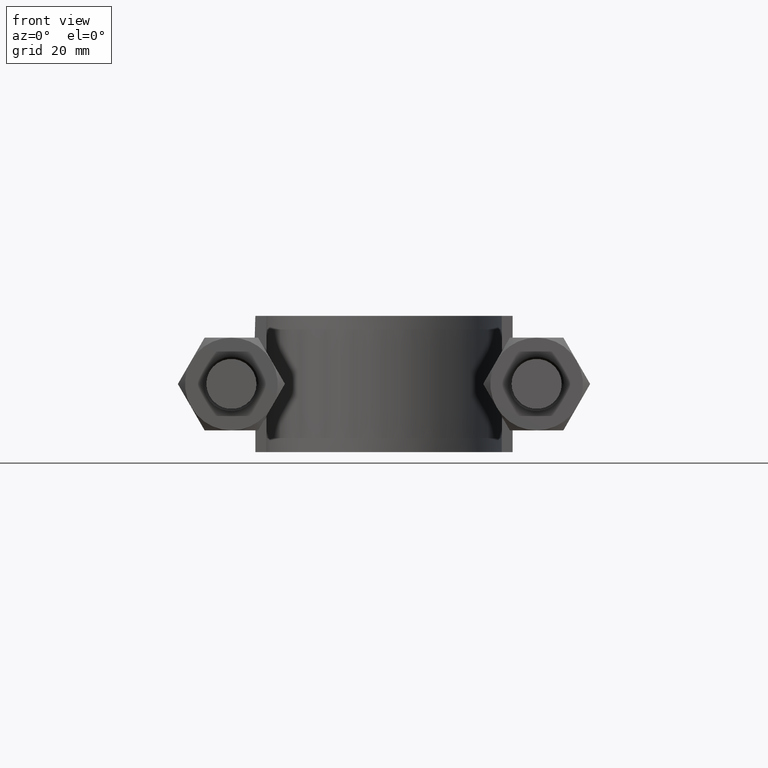
[diagram: clean part render]
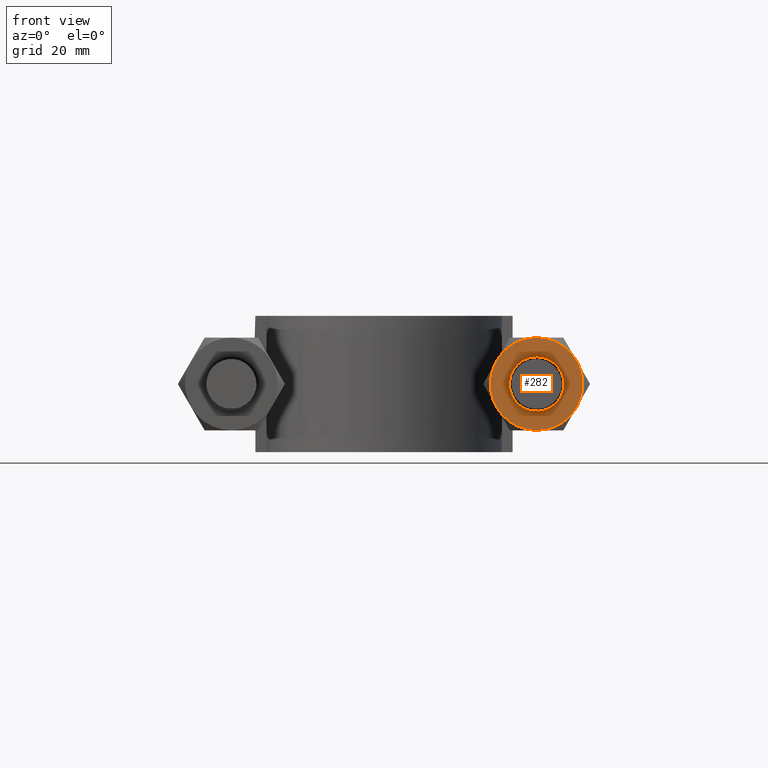
[diagram: same view with one face highlighted and labeled with its STEP entity id]
A machine part, front view. The second image highlights one B-rep face of the part: STEP entity #282.
In plain terms, the highlighted planar face has unit normal (0, 1, 0).
Its self-contained STEP definition (entity closure, byte-faithful):
#282 = ADVANCED_FACE( '', ( #439, #440 ), #441, .F. );
#439 = FACE_OUTER_BOUND( '', #1436, .T. );
#440 = FACE_BOUND( '', #1437, .T. );
#441 = PLANE( '', #1438 );
#1436 = EDGE_LOOP( '', ( #1909, #1910, #1911, #1912, #1913, #1914 ) );
#1437 = EDGE_LOOP( '', ( #1915 ) );
#1438 = AXIS2_PLACEMENT_3D( '', #1916, #1917, #1918 );
#1909 = ORIENTED_EDGE( '', *, *, #2135, .F. );
#1910 = ORIENTED_EDGE( '', *, *, #2141, .F. );
#1911 = ORIENTED_EDGE( '', *, *, #2107, .F. );
#1912 = ORIENTED_EDGE( '', *, *, #2132, .F. );
#1913 = ORIENTED_EDGE( '', *, *, #2105, .F. );
#1914 = ORIENTED_EDGE( '', *, *, #2142, .F. );
#1915 = ORIENTED_EDGE( '', *, *, #2143, .T. );
#1916 = CARTESIAN_POINT( '', ( 28.0000000000000, 20.0000000000000, 6.22440467223928E-016 ) );
#1917 = DIRECTION( '', ( 1.49966072182214E-032, 1.00000000000000, 6.12303176911190E-017 ) );
#1918 = DIRECTION( '', ( 1.00000000000000, 0.000000000000000, -2.44921270764475E-016 ) );
#2105 = EDGE_CURVE( '', #2322, #2324, #2325, .T. );
#2107 = EDGE_CURVE( '', #2327, #2328, #2329, .T. );
#2132 = EDGE_CURVE( '', #2324, #2327, #2373, .T. );
#2135 = EDGE_CURVE( '', #2377, #2378, #2379, .T. );
#2141 = EDGE_CURVE( '', #2328, #2377, #2387, .T. );
#2142 = EDGE_CURVE( '', #2378, #2322, #2388, .T. );
#2143 = EDGE_CURVE( '', #2389, #2389, #2390, .T. );
#2322 = VERTEX_POINT( '', #2893 );
#2324 = VERTEX_POINT( '', #2900 );
#2325 = CIRCLE( '', #2901, 8.50000000000000 );
#2327 = VERTEX_POINT( '', #2908 );
#2328 = VERTEX_POINT( '', #2909 );
#2329 = CIRCLE( '', #2910, 8.50000000000000 );
#2373 = CIRCLE( '', #2980, 8.50000000000000 );
#2377 = VERTEX_POINT( '', #2989 );
#2378 = VERTEX_POINT( '', #2990 );
#2379 = CIRCLE( '', #2991, 8.50000000000000 );
#2387 = CIRCLE( '', #3011, 8.50000000000000 );
#2388 = CIRCLE( '', #3012, 8.50000000000000 );
#2389 = VERTEX_POINT( '', #3013 );
#2390 = CIRCLE( '', #3014, 5.00000000000000 );
#2893 = CARTESIAN_POINT( '', ( 35.3612159321677, 20.0000000000000, -4.25000000000002 ) );
#2900 = CARTESIAN_POINT( '', ( 28.0000000000000, 20.0000000000000, -8.49999999999999 ) );
#2901 = AXIS2_PLACEMENT_3D( '', #3207, #3208, #3209 );
#2908 = CARTESIAN_POINT( '', ( 20.6387840678323, 20.0000000000000, -4.25000000000000 ) );
#2909 = CARTESIAN_POINT( '', ( 20.6387840678323, 20.0000000000000, 4.25000000000000 ) );
#2910 = AXIS2_PLACEMENT_3D( '', #3210, #3211, #3212 );
#2980 = AXIS2_PLACEMENT_3D( '', #3254, #3255, #3256 );
#2989 = CARTESIAN_POINT( '', ( 28.0000000000000, 20.0000000000000, 8.50000000000000 ) );
#2990 = CARTESIAN_POINT( '', ( 35.3612159321677, 20.0000000000000, 4.25000000000001 ) );
#2991 = AXIS2_PLACEMENT_3D( '', #3260, #3261, #3262 );
#3011 = AXIS2_PLACEMENT_3D( '', #3268, #3269, #3270 );
#3012 = AXIS2_PLACEMENT_3D( '', #3271, #3272, #3273 );
#3013 = CARTESIAN_POINT( '', ( 28.0000000000000, 20.0000000000000, 5.00000000000000 ) );
#3014 = AXIS2_PLACEMENT_3D( '', #3274, #3275, #3276 );
#3207 = CARTESIAN_POINT( '', ( 28.0000000000000, 20.0000000000000, 6.22440467223927E-016 ) );
#3208 = DIRECTION( '', ( 1.49966072182214E-032, 1.00000000000000, 6.12303176911190E-017 ) );
#3209 = DIRECTION( '', ( 0.000000000000000, -6.12303176911190E-017, 1.00000000000000 ) );
#3210 = CARTESIAN_POINT( '', ( 28.0000000000000, 20.0000000000000, 6.22440467223927E-016 ) );
#3211 = DIRECTION( '', ( 1.49966072182214E-032, 1.00000000000000, 6.12303176911190E-017 ) );
#3212 = DIRECTION( '', ( 0.000000000000000, -6.12303176911190E-017, 1.00000000000000 ) );
#3254 = CARTESIAN_POINT( '', ( 28.0000000000000, 20.0000000000000, 6.22440467223927E-016 ) );
#3255 = DIRECTION( '', ( 1.49966072182214E-032, 1.00000000000000, 6.12303176911190E-017 ) );
#3256 = DIRECTION( '', ( 0.000000000000000, -6.12303176911190E-017, 1.00000000000000 ) );
#3260 = CARTESIAN_POINT( '', ( 28.0000000000000, 20.0000000000000, 6.22440467223927E-016 ) );
#3261 = DIRECTION( '', ( 1.49966072182214E-032, 1.00000000000000, 6.12303176911190E-017 ) );
#3262 = DIRECTION( '', ( 0.000000000000000, -6.12303176911190E-017, 1.00000000000000 ) );
#3268 = CARTESIAN_POINT( '', ( 28.0000000000000, 20.0000000000000, 6.22440467223927E-016 ) );
#3269 = DIRECTION( '', ( 1.49966072182214E-032, 1.00000000000000, 6.12303176911190E-017 ) );
#3270 = DIRECTION( '', ( 0.000000000000000, -6.12303176911190E-017, 1.00000000000000 ) );
#3271 = CARTESIAN_POINT( '', ( 28.0000000000000, 20.0000000000000, 6.22440467223927E-016 ) );
#3272 = DIRECTION( '', ( 1.49966072182214E-032, 1.00000000000000, 6.12303176911190E-017 ) );
#3273 = DIRECTION( '', ( 0.000000000000000, -6.12303176911190E-017, 1.00000000000000 ) );
#3274 = CARTESIAN_POINT( '', ( 28.0000000000000, 20.0000000000000, 6.22440467223928E-016 ) );
#3275 = DIRECTION( '', ( 1.49966072182214E-032, 1.00000000000000, 6.12303176911190E-017 ) );
#3276 = DIRECTION( '', ( 0.000000000000000, -6.12303176911190E-017, 1.00000000000000 ) );